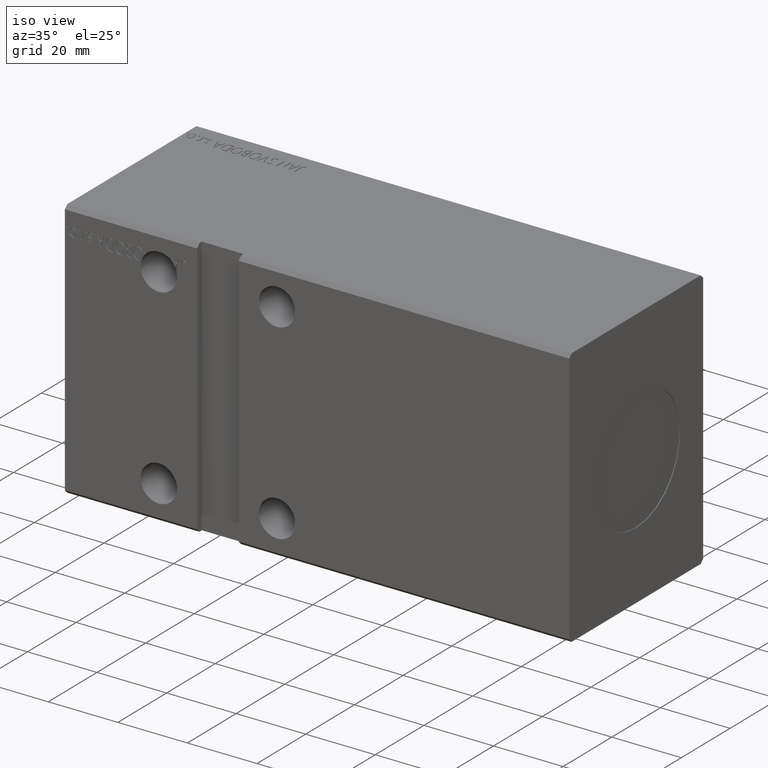
[diagram: clean part render]
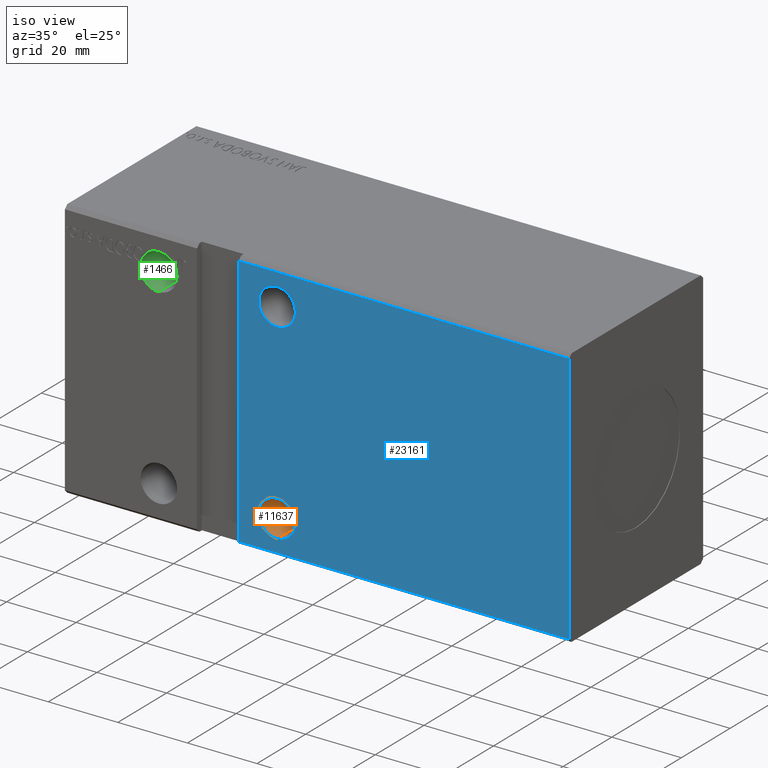
[diagram: same view with three faces highlighted in distinct colors, each labeled with its STEP entity id]
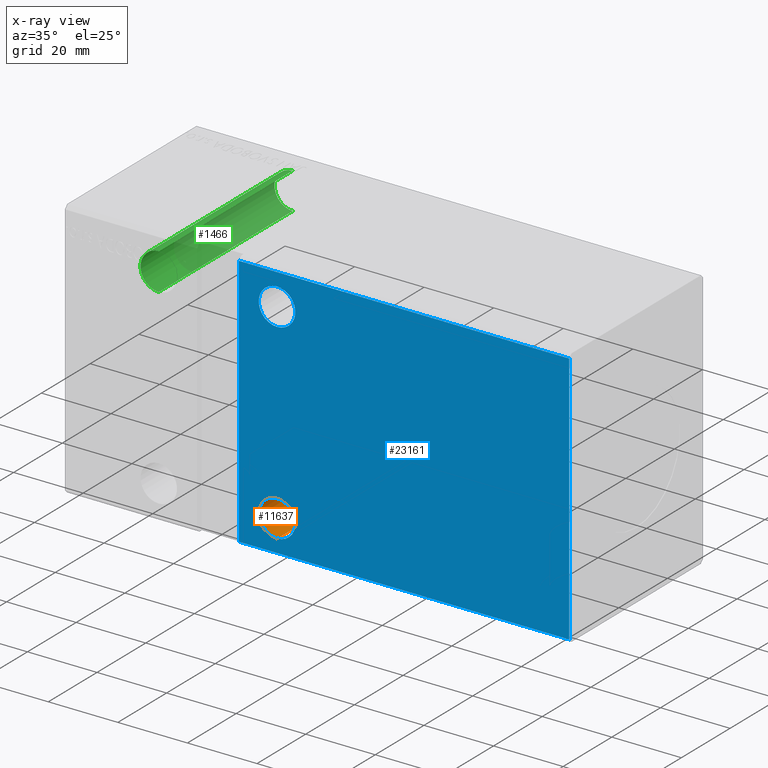
[diagram: x-ray of the same camera — body ghosted, the three highlighted faces saturated]
A machine part, iso view with three faces highlighted in distinct colors.
The next image is the same camera in x-ray (body ghosted, the three faces saturated) — at least one of them is partly hidden behind the body in this view.
Their STEP definitions:

[orange] entity #11637 — the highlighted cylindrical surface (edge-blend (fillet) strip) has radius 5.25 mm, axis along (-0, -1, -0).
#18 = DIRECTION ( 'NONE',  ( 0.000000000000000000, 0.000000000000000000, 1.000000000000000000 ) ) ;
#2891 = CARTESIAN_POINT ( 'NONE',  ( 61.00000000000000711, 27.50000000000003197, -32.74999999999999289 ) ) ;
#3871 = DIRECTION ( 'NONE',  ( 0.000000000000000000, 0.000000000000000000, -1.000000000000000000 ) ) ;
#5542 = AXIS2_PLACEMENT_3D ( 'NONE', #6479, #9639, #3871 ) ;
#6479 = CARTESIAN_POINT ( 'NONE',  ( 61.00000000000000711, 27.50000000000003197, -27.50000000000000000 ) ) ;
#7270 = VERTEX_POINT ( 'NONE', #29121 ) ;
#8901 = VECTOR ( 'NONE', #15044, 1000.000000000000000 ) ;
#9507 = EDGE_CURVE ( 'NONE', #25949, #35832, #15084, .T. ) ;
#9547 = CARTESIAN_POINT ( 'NONE',  ( 61.00000000000000711, 27.50000000000003197, -22.25000000000000355 ) ) ;
#9639 = DIRECTION ( 'NONE',  ( 0.000000000000000000, -1.000000000000000000, -5.507058653894625853E-17 ) ) ;
#11396 = ORIENTED_EDGE ( 'NONE', *, *, #14176, .F. ) ;
#11637 = ADVANCED_FACE ( 'NONE', ( #24239 ), #28213, .F. ) ;
#12184 = EDGE_LOOP ( 'NONE', ( #24721, #28167, #11396, #22143 ) ) ;
#13863 = AXIS2_PLACEMENT_3D ( 'NONE', #25608, #16241, #25999 ) ;
#14176 = EDGE_CURVE ( 'NONE', #23162, #7270, #20292, .T. ) ;
#15044 = DIRECTION ( 'NONE',  ( -0.000000000000000000, -1.000000000000000000, -5.507058653894626469E-17 ) ) ;
#15084 = CIRCLE ( 'NONE', #5542, 5.249999999999994671 ) ;
#15155 = DIRECTION ( 'NONE',  ( -0.000000000000000000, 1.000000000000000000, 4.752667057470705491E-17 ) ) ;
#15536 = DIRECTION ( 'NONE',  ( -0.000000000000000000, -1.000000000000000000, -5.507058653894626469E-17 ) ) ;
#16241 = DIRECTION ( 'NONE',  ( -0.000000000000000000, -1.000000000000000000, -5.507058653894626469E-17 ) ) ;
#16639 = VECTOR ( 'NONE', #15536, 1000.000000000000000 ) ;
#18709 = EDGE_CURVE ( 'NONE', #35832, #23162, #36982, .T. ) ;
#20292 = CIRCLE ( 'NONE', #20915, 5.249999999999997335 ) ;
#20915 = AXIS2_PLACEMENT_3D ( 'NONE', #21530, #15155, #18 ) ;
#21530 = CARTESIAN_POINT ( 'NONE',  ( 61.00000000000000711, -27.50000000000000355, -27.50000000000000355 ) ) ;
#22143 = ORIENTED_EDGE ( 'NONE', *, *, #18709, .F. ) ;
#23162 = VERTEX_POINT ( 'NONE', #27415 ) ;
#24239 = FACE_OUTER_BOUND ( 'NONE', #12184, .T. ) ;
#24721 = ORIENTED_EDGE ( 'NONE', *, *, #9507, .F. ) ;
#25608 = CARTESIAN_POINT ( 'NONE',  ( 61.00000000000000711, 27.50000000000003197, -27.50000000000000000 ) ) ;
#25786 = CARTESIAN_POINT ( 'NONE',  ( 61.00000000000000711, 27.50000000000003197, -22.25000000000000355 ) ) ;
#25949 = VERTEX_POINT ( 'NONE', #25786 ) ;
#25999 = DIRECTION ( 'NONE',  ( 0.000000000000000000, 0.000000000000000000, -1.000000000000000000 ) ) ;
#26454 = EDGE_CURVE ( 'NONE', #25949, #7270, #36887, .T. ) ;
#27415 = CARTESIAN_POINT ( 'NONE',  ( 61.00000000000000711, -27.50000000000000355, -32.75000000000000000 ) ) ;
#28167 = ORIENTED_EDGE ( 'NONE', *, *, #26454, .T. ) ;
#28213 = CYLINDRICAL_SURFACE ( 'NONE', #13863, 5.249999999999994671 ) ;
#29121 = CARTESIAN_POINT ( 'NONE',  ( 61.00000000000000711, -27.50000000000000355, -22.25000000000000711 ) ) ;
#33135 = CARTESIAN_POINT ( 'NONE',  ( 61.00000000000000711, 27.50000000000003197, -32.74999999999999289 ) ) ;
#35832 = VERTEX_POINT ( 'NONE', #33135 ) ;
#36887 = LINE ( 'NONE', #9547, #16639 ) ;
#36982 = LINE ( 'NONE', #2891, #8901 ) ;

[blue] entity #23161 — the highlighted planar face has unit normal (-0, 1, 0).
#18 = DIRECTION ( 'NONE',  ( 0.000000000000000000, 0.000000000000000000, 1.000000000000000000 ) ) ;
#1380 = VECTOR ( 'NONE', #11791, 1000.000000000000000 ) ;
#1772 = DIRECTION ( 'NONE',  ( 0.000000000000000000, 0.000000000000000000, 1.000000000000000000 ) ) ;
#3964 = DIRECTION ( 'NONE',  ( -1.000000000000000000, -0.000000000000000000, -0.000000000000000000 ) ) ;
#4040 = EDGE_CURVE ( 'NONE', #17769, #17474, #14994, .T. ) ;
#4087 = VERTEX_POINT ( 'NONE', #23096 ) ;
#5629 = LINE ( 'NONE', #29958, #1380 ) ;
#6088 = CARTESIAN_POINT ( 'NONE',  ( 145.0000000000000000, -27.50000000000000711, 36.50000000000000711 ) ) ;
#6203 = ORIENTED_EDGE ( 'NONE', *, *, #4040, .F. ) ;
#7160 = CARTESIAN_POINT ( 'NONE',  ( 61.00000000000000711, -27.50000000000000355, -27.50000000000000355 ) ) ;
#7270 = VERTEX_POINT ( 'NONE', #29121 ) ;
#7945 = EDGE_LOOP ( 'NONE', ( #30542, #6203 ) ) ;
#8130 = DIRECTION ( 'NONE',  ( 0.000000000000000000, -1.000000000000000000, -4.752667057470705491E-17 ) ) ;
#8227 = EDGE_CURVE ( 'NONE', #17474, #17769, #23320, .T. ) ;
#8869 = FACE_BOUND ( 'NONE', #7945, .T. ) ;
#8889 = EDGE_CURVE ( 'NONE', #38294, #32001, #27884, .T. ) ;
#11168 = LINE ( 'NONE', #35111, #38938 ) ;
#11620 = CARTESIAN_POINT ( 'NONE',  ( 61.00000000000000000, -27.50000000000000355, 32.75000000000000000 ) ) ;
#11632 = ORIENTED_EDGE ( 'NONE', *, *, #19988, .F. ) ;
#11791 = DIRECTION ( 'NONE',  ( -0.000000000000000000, -9.251858538542971581E-17, 1.000000000000000000 ) ) ;
#12120 = VECTOR ( 'NONE', #32343, 1000.000000000000000 ) ;
#12923 = CARTESIAN_POINT ( 'NONE',  ( 145.0000000000000000, -27.50000000000000711, 36.50000000000000711 ) ) ;
#13226 = EDGE_CURVE ( 'NONE', #7270, #23162, #20268, .T. ) ;
#13300 = EDGE_LOOP ( 'NONE', ( #22108, #32358, #11632, #27182 ) ) ;
#13810 = VECTOR ( 'NONE', #3964, 1000.000000000000000 ) ;
#14001 = AXIS2_PLACEMENT_3D ( 'NONE', #6088, #24033, #36201 ) ;
#14176 = EDGE_CURVE ( 'NONE', #23162, #7270, #20292, .T. ) ;
#14994 = CIRCLE ( 'NONE', #36638, 5.250000000000004441 ) ;
#15155 = DIRECTION ( 'NONE',  ( -0.000000000000000000, 1.000000000000000000, 4.752667057470705491E-17 ) ) ;
#16308 = AXIS2_PLACEMENT_3D ( 'NONE', #38451, #8130, #22887 ) ;
#16327 = DIRECTION ( 'NONE',  ( 0.000000000000000000, 0.000000000000000000, 1.000000000000000000 ) ) ;
#16914 = DIRECTION ( 'NONE',  ( 0.000000000000000000, -1.000000000000000000, -4.752667057470705491E-17 ) ) ;
#17474 = VERTEX_POINT ( 'NONE', #18756 ) ;
#17769 = VERTEX_POINT ( 'NONE', #11620 ) ;
#18756 = CARTESIAN_POINT ( 'NONE',  ( 61.00000000000000000, -27.50000000000000355, 22.24999999999999289 ) ) ;
#19988 = EDGE_CURVE ( 'NONE', #4087, #29004, #35919, .T. ) ;
#20268 = CIRCLE ( 'NONE', #37461, 5.249999999999997335 ) ;
#20292 = CIRCLE ( 'NONE', #20915, 5.249999999999997335 ) ;
#20357 = CARTESIAN_POINT ( 'NONE',  ( 145.0000000000000000, -27.50000000000000355, -36.49999999999998579 ) ) ;
#20450 = FACE_BOUND ( 'NONE', #39300, .T. ) ;
#20542 = CARTESIAN_POINT ( 'NONE',  ( 145.0000000000000000, -27.50000000000000711, 36.50000000000000711 ) ) ;
#20915 = AXIS2_PLACEMENT_3D ( 'NONE', #21530, #15155, #18 ) ;
#21530 = CARTESIAN_POINT ( 'NONE',  ( 61.00000000000000711, -27.50000000000000355, -27.50000000000000355 ) ) ;
#22108 = ORIENTED_EDGE ( 'NONE', *, *, #8889, .T. ) ;
#22887 = DIRECTION ( 'NONE',  ( 0.000000000000000000, 0.000000000000000000, 1.000000000000000000 ) ) ;
#23096 = CARTESIAN_POINT ( 'NONE',  ( 145.0000000000000000, -27.50000000000000355, -36.49999999999998579 ) ) ;
#23161 = ADVANCED_FACE ( 'NONE', ( #20450, #33409, #8869 ), #36005, .F. ) ;
#23162 = VERTEX_POINT ( 'NONE', #27415 ) ;
#23320 = CIRCLE ( 'NONE', #16308, 5.250000000000004441 ) ;
#24033 = DIRECTION ( 'NONE',  ( -0.000000000000000000, 1.000000000000000000, 4.752667057470705491E-17 ) ) ;
#25606 = ORIENTED_EDGE ( 'NONE', *, *, #14176, .T. ) ;
#26562 = CARTESIAN_POINT ( 'NONE',  ( 49.99999999999999289, -27.50000000000000000, -36.49999999999997868 ) ) ;
#27182 = ORIENTED_EDGE ( 'NONE', *, *, #30743, .F. ) ;
#27415 = CARTESIAN_POINT ( 'NONE',  ( 61.00000000000000711, -27.50000000000000355, -32.75000000000000000 ) ) ;
#27884 = LINE ( 'NONE', #12923, #13810 ) ;
#29004 = VERTEX_POINT ( 'NONE', #26562 ) ;
#29028 = EDGE_CURVE ( 'NONE', #29004, #32001, #5629, .T. ) ;
#29121 = CARTESIAN_POINT ( 'NONE',  ( 61.00000000000000711, -27.50000000000000355, -22.25000000000000711 ) ) ;
#29958 = CARTESIAN_POINT ( 'NONE',  ( 49.99999999999999289, -27.50000000000000711, 37.50000000000000711 ) ) ;
#30542 = ORIENTED_EDGE ( 'NONE', *, *, #8227, .F. ) ;
#30743 = EDGE_CURVE ( 'NONE', #38294, #4087, #11168, .T. ) ;
#32001 = VERTEX_POINT ( 'NONE', #34179 ) ;
#32343 = DIRECTION ( 'NONE',  ( -1.000000000000000000, -0.000000000000000000, -0.000000000000000000 ) ) ;
#32358 = ORIENTED_EDGE ( 'NONE', *, *, #29028, .F. ) ;
#32521 = DIRECTION ( 'NONE',  ( 0.000000000000000000, 4.752667057470705491E-17, -1.000000000000000000 ) ) ;
#33409 = FACE_OUTER_BOUND ( 'NONE', #13300, .T. ) ;
#34179 = CARTESIAN_POINT ( 'NONE',  ( 49.99999999999999289, -27.50000000000000711, 36.50000000000000711 ) ) ;
#35111 = CARTESIAN_POINT ( 'NONE',  ( 145.0000000000000000, -27.50000000000000711, 36.50000000000000711 ) ) ;
#35272 = CARTESIAN_POINT ( 'NONE',  ( 61.00000000000000000, -27.50000000000000355, 27.49999999999999645 ) ) ;
#35919 = LINE ( 'NONE', #20357, #12120 ) ;
#36005 = PLANE ( 'NONE',  #14001 ) ;
#36073 = ORIENTED_EDGE ( 'NONE', *, *, #13226, .T. ) ;
#36201 = DIRECTION ( 'NONE',  ( 0.000000000000000000, -4.752667057470705491E-17, 1.000000000000000000 ) ) ;
#36638 = AXIS2_PLACEMENT_3D ( 'NONE', #35272, #16914, #1772 ) ;
#37461 = AXIS2_PLACEMENT_3D ( 'NONE', #7160, #37676, #16327 ) ;
#37676 = DIRECTION ( 'NONE',  ( -0.000000000000000000, 1.000000000000000000, 4.752667057470705491E-17 ) ) ;
#38294 = VERTEX_POINT ( 'NONE', #20542 ) ;
#38451 = CARTESIAN_POINT ( 'NONE',  ( 61.00000000000000000, -27.50000000000000355, 27.49999999999999645 ) ) ;
#38938 = VECTOR ( 'NONE', #32521, 1000.000000000000000 ) ;
#39300 = EDGE_LOOP ( 'NONE', ( #25606, #36073 ) ) ;

[green] entity #1466 — the highlighted cylindrical surface (edge-blend (fillet) strip) has radius 5.25 mm, axis along (-0, -1, -0).
#603 = ORIENTED_EDGE ( 'NONE', *, *, #22156, .F. ) ;
#1343 = DIRECTION ( 'NONE',  ( 0.000000000000000000, 1.000000000000000000, 5.507058653894626469E-17 ) ) ;
#1466 = ADVANCED_FACE ( 'NONE', ( #8172 ), #1805, .F. ) ;
#1652 = DIRECTION ( 'NONE',  ( -0.000000000000000000, -1.000000000000000000, -5.507058653894626469E-17 ) ) ;
#1805 = CYLINDRICAL_SURFACE ( 'NONE', #9922, 5.249999999999997335 ) ;
#1933 = ORIENTED_EDGE ( 'NONE', *, *, #32127, .T. ) ;
#3673 = VECTOR ( 'NONE', #1343, 1000.000000000000000 ) ;
#3892 = EDGE_LOOP ( 'NONE', ( #603, #25845, #8124, #31566, #9255, #1933, #7775, #16744 ) ) ;
#4579 = CIRCLE ( 'NONE', #10281, 5.249999999999994671 ) ;
#6351 = VERTEX_POINT ( 'NONE', #8640 ) ;
#6424 = CARTESIAN_POINT ( 'NONE',  ( 24.11366070484026380, -27.50000000000000355, 31.88537860089830289 ) ) ;
#7775 = ORIENTED_EDGE ( 'NONE', *, *, #20625, .F. ) ;
#8124 = ORIENTED_EDGE ( 'NONE', *, *, #19791, .F. ) ;
#8172 = FACE_OUTER_BOUND ( 'NONE', #3892, .T. ) ;
#8640 = CARTESIAN_POINT ( 'NONE',  ( 26.99999999999999645, 27.50000000000003197, 22.25000000000000000 ) ) ;
#8868 = CIRCLE ( 'NONE', #31173, 5.249999999999997335 ) ;
#9144 = CARTESIAN_POINT ( 'NONE',  ( 26.99999999999999645, -27.50000000000000355, 32.74999999999998579 ) ) ;
#9255 = ORIENTED_EDGE ( 'NONE', *, *, #31199, .F. ) ;
#9922 = AXIS2_PLACEMENT_3D ( 'NONE', #35303, #11563, #35702 ) ;
#10281 = AXIS2_PLACEMENT_3D ( 'NONE', #21651, #12483, #24647 ) ;
#11228 = LINE ( 'NONE', #17408, #30700 ) ;
#11356 = EDGE_CURVE ( 'NONE', #17896, #17801, #28860, .T. ) ;
#11563 = DIRECTION ( 'NONE',  ( -0.000000000000000000, -1.000000000000000000, -5.507058653894626469E-17 ) ) ;
#12483 = DIRECTION ( 'NONE',  ( 0.000000000000000000, 1.000000000000000000, 0.000000000000000000 ) ) ;
#12697 = VERTEX_POINT ( 'NONE', #20006 ) ;
#14599 = CARTESIAN_POINT ( 'NONE',  ( 26.99999999999999645, 27.50000000000003197, 27.49999999999999645 ) ) ;
#16031 = VERTEX_POINT ( 'NONE', #9144 ) ;
#16597 = AXIS2_PLACEMENT_3D ( 'NONE', #23670, #27241, #38836 ) ;
#16744 = ORIENTED_EDGE ( 'NONE', *, *, #29667, .F. ) ;
#17224 = AXIS2_PLACEMENT_3D ( 'NONE', #29990, #23601, #35774 ) ;
#17408 = CARTESIAN_POINT ( 'NONE',  ( 23.53274401545083450, 27.50000000000003197, 31.44216132820663745 ) ) ;
#17801 = VERTEX_POINT ( 'NONE', #32768 ) ;
#17896 = VERTEX_POINT ( 'NONE', #6424 ) ;
#18605 = EDGE_CURVE ( 'NONE', #29886, #16031, #20048, .T. ) ;
#19791 = EDGE_CURVE ( 'NONE', #17896, #16031, #28027, .T. ) ;
#20006 = CARTESIAN_POINT ( 'NONE',  ( 26.99999999999999645, -27.50000000000000355, 22.24999999999999645 ) ) ;
#20048 = LINE ( 'NONE', #26426, #29301 ) ;
#20625 = EDGE_CURVE ( 'NONE', #12697, #32291, #29332, .T. ) ;
#21351 = DIRECTION ( 'NONE',  ( 0.000000000000000000, 0.000000000000000000, -1.000000000000000000 ) ) ;
#21651 = CARTESIAN_POINT ( 'NONE',  ( 26.99999999999999645, -27.29999999999999716, 27.49999999999999289 ) ) ;
#21739 = CARTESIAN_POINT ( 'NONE',  ( 26.99999999999999645, 27.50000000000003197, 32.74999999999999289 ) ) ;
#22156 = EDGE_CURVE ( 'NONE', #29886, #6351, #8868, .T. ) ;
#22782 = LINE ( 'NONE', #35157, #38364 ) ;
#23601 = DIRECTION ( 'NONE',  ( -0.000000000000000000, 1.000000000000000000, 4.752667057470705491E-17 ) ) ;
#23670 = CARTESIAN_POINT ( 'NONE',  ( 26.99999999999999645, -27.50000000000000355, 27.49999999999999289 ) ) ;
#24647 = DIRECTION ( 'NONE',  ( 0.000000000000000000, 0.000000000000000000, 1.000000000000000000 ) ) ;
#25845 = ORIENTED_EDGE ( 'NONE', *, *, #18605, .T. ) ;
#26048 = CARTESIAN_POINT ( 'NONE',  ( 24.11366070484026380, 27.50000000000003197, 31.88537860089830289 ) ) ;
#26426 = CARTESIAN_POINT ( 'NONE',  ( 26.99999999999999645, 27.50000000000003197, 32.74999999999999289 ) ) ;
#27241 = DIRECTION ( 'NONE',  ( -0.000000000000000000, 1.000000000000000000, 4.752667057470705491E-17 ) ) ;
#28027 = CIRCLE ( 'NONE', #17224, 5.249999999999994671 ) ;
#28860 = LINE ( 'NONE', #26048, #3673 ) ;
#29301 = VECTOR ( 'NONE', #32228, 1000.000000000000000 ) ;
#29332 = CIRCLE ( 'NONE', #16597, 5.249999999999994671 ) ;
#29667 = EDGE_CURVE ( 'NONE', #6351, #12697, #22782, .T. ) ;
#29886 = VERTEX_POINT ( 'NONE', #21739 ) ;
#29990 = CARTESIAN_POINT ( 'NONE',  ( 26.99999999999999645, -27.50000000000000355, 27.49999999999999289 ) ) ;
#30700 = VECTOR ( 'NONE', #38361, 1000.000000000000000 ) ;
#31173 = AXIS2_PLACEMENT_3D ( 'NONE', #14599, #32957, #21351 ) ;
#31199 = EDGE_CURVE ( 'NONE', #33898, #17801, #4579, .T. ) ;
#31566 = ORIENTED_EDGE ( 'NONE', *, *, #11356, .T. ) ;
#32127 = EDGE_CURVE ( 'NONE', #33898, #32291, #11228, .T. ) ;
#32228 = DIRECTION ( 'NONE',  ( -0.000000000000000000, -1.000000000000000000, -5.507058653894626469E-17 ) ) ;
#32291 = VERTEX_POINT ( 'NONE', #33155 ) ;
#32768 = CARTESIAN_POINT ( 'NONE',  ( 24.11366070484026380, -27.29999999999999716, 31.88537860089830289 ) ) ;
#32957 = DIRECTION ( 'NONE',  ( 0.000000000000000000, -1.000000000000000000, -5.507058653894625853E-17 ) ) ;
#33155 = CARTESIAN_POINT ( 'NONE',  ( 23.53274401545083094, -27.50000000000000355, 31.44216132820663745 ) ) ;
#33898 = VERTEX_POINT ( 'NONE', #39189 ) ;
#35157 = CARTESIAN_POINT ( 'NONE',  ( 26.99999999999999645, 27.50000000000003197, 22.25000000000000000 ) ) ;
#35303 = CARTESIAN_POINT ( 'NONE',  ( 26.99999999999999645, 27.50000000000003197, 27.49999999999999645 ) ) ;
#35702 = DIRECTION ( 'NONE',  ( 0.000000000000000000, 0.000000000000000000, -1.000000000000000000 ) ) ;
#35774 = DIRECTION ( 'NONE',  ( 0.000000000000000000, 0.000000000000000000, 1.000000000000000000 ) ) ;
#38361 = DIRECTION ( 'NONE',  ( -0.000000000000000000, -1.000000000000000000, -5.507058653894626469E-17 ) ) ;
#38364 = VECTOR ( 'NONE', #1652, 1000.000000000000000 ) ;
#38836 = DIRECTION ( 'NONE',  ( 0.000000000000000000, 0.000000000000000000, 1.000000000000000000 ) ) ;
#39189 = CARTESIAN_POINT ( 'NONE',  ( 23.53274401545083450, -27.30000000000001137, 31.44216132820663745 ) ) ;